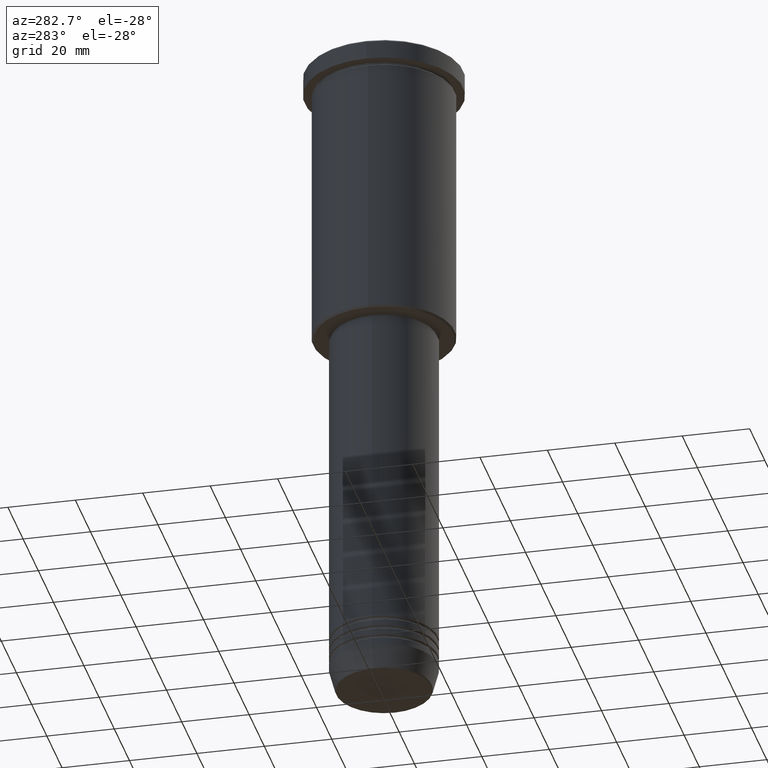
[diagram: clean part render]
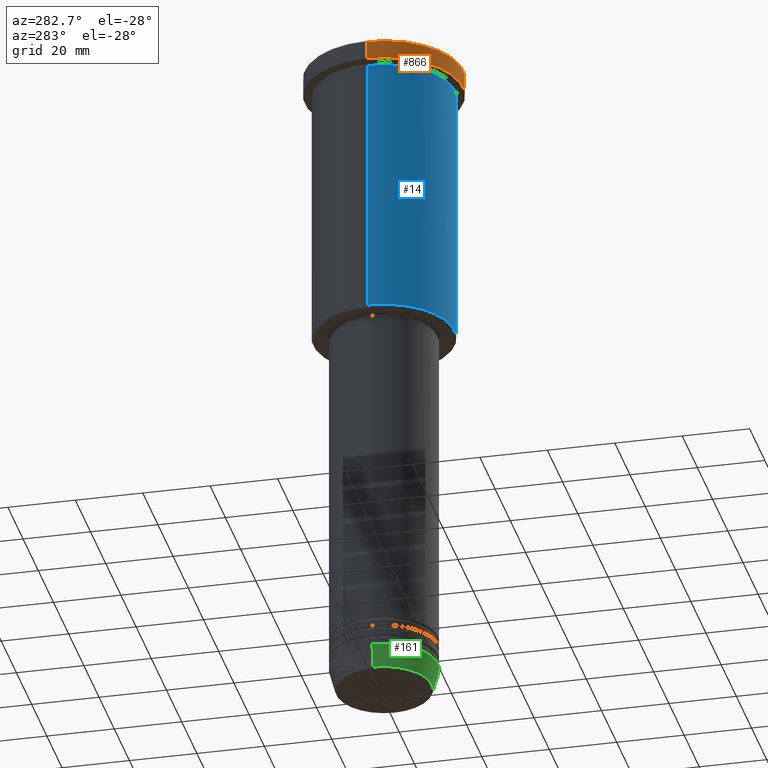
[diagram: same view with three faces highlighted in distinct colors, each labeled with its STEP entity id]
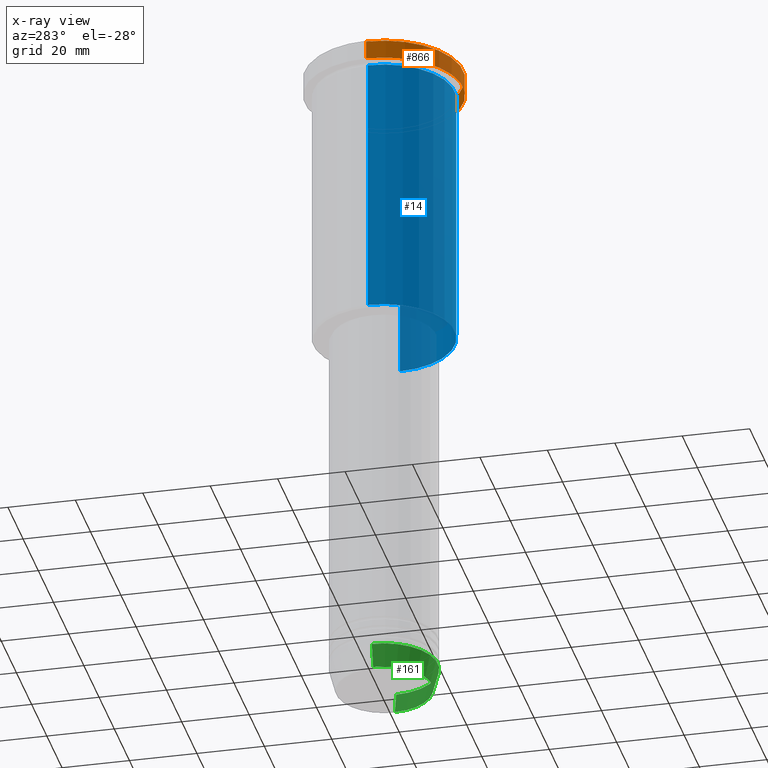
[diagram: x-ray of the same camera — body ghosted, the three highlighted faces saturated]
A machine part, auxiliary view with three faces highlighted in distinct colors.
The next image is the same camera in x-ray (body ghosted, the three faces saturated) — at least one of them is partly hidden behind the body in this view.
Their STEP definitions:

[orange] entity #866 — the highlighted cylindrical surface (partial cylindrical patch) has radius 23.5 mm, axis along (-0, -0, 1).
#24 = AXIS2_PLACEMENT_3D ( 'NONE', #968, #1162, #620 ) ;
#29 = EDGE_CURVE ( 'NONE', #541, #777, #37, .T. ) ;
#35 = CARTESIAN_POINT ( 'NONE',  ( 23.50000000000000000, 0.000000000000000000, -5.999999999999994671 ) ) ;
#37 = LINE ( 'NONE', #486, #363 ) ;
#87 = CARTESIAN_POINT ( 'NONE',  ( 23.50000000000000000, 0.000000000000000000, 0.000000000000000000 ) ) ;
#108 = EDGE_CURVE ( 'NONE', #541, #893, #825, .T. ) ;
#119 = ORIENTED_EDGE ( 'NONE', *, *, #108, .T. ) ;
#128 = CYLINDRICAL_SURFACE ( 'NONE', #1152, 23.50000000000000000 ) ;
#146 = CARTESIAN_POINT ( 'NONE',  ( 23.50000000000000000, 0.000000000000000000, -0.5000000000000004441 ) ) ;
#170 = LINE ( 'NONE', #87, #402 ) ;
#173 = AXIS2_PLACEMENT_3D ( 'NONE', #1177, #350, #659 ) ;
#230 = FACE_OUTER_BOUND ( 'NONE', #704, .T. ) ;
#270 = CARTESIAN_POINT ( 'NONE',  ( -23.50000000000000000, 2.877919977996280320E-15, -0.5000000000000004441 ) ) ;
#288 = EDGE_CURVE ( 'NONE', #893, #603, #170, .T. ) ;
#350 = DIRECTION ( 'NONE',  ( 0.000000000000000000, 0.000000000000000000, -1.000000000000000000 ) ) ;
#363 = VECTOR ( 'NONE', #396, 1000.000000000000000 ) ;
#386 = CARTESIAN_POINT ( 'NONE',  ( -23.50000000000000000, 2.877919977996280320E-15, -5.999999999999994671 ) ) ;
#396 = DIRECTION ( 'NONE',  ( -0.000000000000000000, -0.000000000000000000, 1.000000000000000000 ) ) ;
#400 = EDGE_CURVE ( 'NONE', #603, #777, #564, .T. ) ;
#402 = VECTOR ( 'NONE', #453, 1000.000000000000000 ) ;
#453 = DIRECTION ( 'NONE',  ( -0.000000000000000000, -0.000000000000000000, 1.000000000000000000 ) ) ;
#486 = CARTESIAN_POINT ( 'NONE',  ( -23.50000000000000000, 2.877919977996280320E-15, 0.000000000000000000 ) ) ;
#489 = CARTESIAN_POINT ( 'NONE',  ( 0.000000000000000000, 0.000000000000000000, 0.000000000000000000 ) ) ;
#541 = VERTEX_POINT ( 'NONE', #386 ) ;
#564 = CIRCLE ( 'NONE', #173, 23.50000000000000000 ) ;
#596 = ORIENTED_EDGE ( 'NONE', *, *, #29, .F. ) ;
#603 = VERTEX_POINT ( 'NONE', #146 ) ;
#620 = DIRECTION ( 'NONE',  ( 1.000000000000000000, 0.000000000000000000, 0.000000000000000000 ) ) ;
#659 = DIRECTION ( 'NONE',  ( 1.000000000000000000, 0.000000000000000000, 0.000000000000000000 ) ) ;
#682 = DIRECTION ( 'NONE',  ( -0.000000000000000000, -0.000000000000000000, 1.000000000000000000 ) ) ;
#704 = EDGE_LOOP ( 'NONE', ( #596, #119, #1034, #753 ) ) ;
#753 = ORIENTED_EDGE ( 'NONE', *, *, #400, .T. ) ;
#763 = DIRECTION ( 'NONE',  ( 1.000000000000000000, 0.000000000000000000, 0.000000000000000000 ) ) ;
#777 = VERTEX_POINT ( 'NONE', #270 ) ;
#825 = CIRCLE ( 'NONE', #24, 23.50000000000000000 ) ;
#866 = ADVANCED_FACE ( 'NONE', ( #230 ), #128, .T. ) ;
#893 = VERTEX_POINT ( 'NONE', #35 ) ;
#968 = CARTESIAN_POINT ( 'NONE',  ( 0.000000000000000000, 0.000000000000000000, -5.999999999999994671 ) ) ;
#1034 = ORIENTED_EDGE ( 'NONE', *, *, #288, .T. ) ;
#1152 = AXIS2_PLACEMENT_3D ( 'NONE', #489, #682, #763 ) ;
#1162 = DIRECTION ( 'NONE',  ( -0.000000000000000000, -0.000000000000000000, 1.000000000000000000 ) ) ;
#1177 = CARTESIAN_POINT ( 'NONE',  ( 0.000000000000000000, 0.000000000000000000, -0.5000000000000004441 ) ) ;

[blue] entity #14 — the highlighted cylindrical surface (partial cylindrical patch) has radius 21 mm, axis along (-0, -0, 1).
#5 = ORIENTED_EDGE ( 'NONE', *, *, #1106, .T. ) ;
#14 = ADVANCED_FACE ( 'NONE', ( #477 ), #685, .T. ) ;
#15 = CARTESIAN_POINT ( 'NONE',  ( 0.000000000000000000, 0.000000000000000000, -85.49999999999997158 ) ) ;
#68 = VERTEX_POINT ( 'NONE', #701 ) ;
#73 = LINE ( 'NONE', #889, #655 ) ;
#95 = CARTESIAN_POINT ( 'NONE',  ( 0.000000000000000000, 0.000000000000000000, -6.999999999999994671 ) ) ;
#110 = CARTESIAN_POINT ( 'NONE',  ( -21.00000000000000000, 2.571758278209441661E-15, -6.999999999999994671 ) ) ;
#134 = EDGE_CURVE ( 'NONE', #211, #451, #957, .T. ) ;
#211 = VERTEX_POINT ( 'NONE', #1091 ) ;
#236 = EDGE_CURVE ( 'NONE', #451, #1165, #783, .T. ) ;
#253 = DIRECTION ( 'NONE',  ( -0.000000000000000000, -0.000000000000000000, 1.000000000000000000 ) ) ;
#266 = AXIS2_PLACEMENT_3D ( 'NONE', #95, #359, #273 ) ;
#273 = DIRECTION ( 'NONE',  ( 1.000000000000000000, 0.000000000000000000, 0.000000000000000000 ) ) ;
#297 = DIRECTION ( 'NONE',  ( -0.000000000000000000, -0.000000000000000000, 1.000000000000000000 ) ) ;
#322 = EDGE_CURVE ( 'NONE', #68, #1165, #73, .T. ) ;
#359 = DIRECTION ( 'NONE',  ( -0.000000000000000000, -0.000000000000000000, 1.000000000000000000 ) ) ;
#408 = AXIS2_PLACEMENT_3D ( 'NONE', #15, #823, #907 ) ;
#427 = CARTESIAN_POINT ( 'NONE',  ( -21.00000000000000000, 2.571758278209441661E-15, 0.000000000000000000 ) ) ;
#451 = VERTEX_POINT ( 'NONE', #110 ) ;
#456 = CARTESIAN_POINT ( 'NONE',  ( 21.00000000000000000, 0.000000000000000000, -6.999999999999994671 ) ) ;
#458 = ORIENTED_EDGE ( 'NONE', *, *, #322, .T. ) ;
#477 = FACE_OUTER_BOUND ( 'NONE', #728, .T. ) ;
#516 = ORIENTED_EDGE ( 'NONE', *, *, #134, .F. ) ;
#542 = VECTOR ( 'NONE', #606, 1000.000000000000000 ) ;
#580 = AXIS2_PLACEMENT_3D ( 'NONE', #1117, #297, #1045 ) ;
#606 = DIRECTION ( 'NONE',  ( -0.000000000000000000, -0.000000000000000000, 1.000000000000000000 ) ) ;
#655 = VECTOR ( 'NONE', #253, 1000.000000000000000 ) ;
#685 = CYLINDRICAL_SURFACE ( 'NONE', #580, 21.00000000000000000 ) ;
#687 = ORIENTED_EDGE ( 'NONE', *, *, #236, .F. ) ;
#701 = CARTESIAN_POINT ( 'NONE',  ( 21.00000000000000000, 0.000000000000000000, -85.49999999999997158 ) ) ;
#728 = EDGE_LOOP ( 'NONE', ( #516, #5, #458, #687 ) ) ;
#783 = CIRCLE ( 'NONE', #266, 21.00000000000000000 ) ;
#823 = DIRECTION ( 'NONE',  ( -0.000000000000000000, -0.000000000000000000, 1.000000000000000000 ) ) ;
#889 = CARTESIAN_POINT ( 'NONE',  ( 21.00000000000000000, 0.000000000000000000, 0.000000000000000000 ) ) ;
#907 = DIRECTION ( 'NONE',  ( -1.000000000000000000, 0.000000000000000000, 0.000000000000000000 ) ) ;
#939 = CIRCLE ( 'NONE', #408, 21.00000000000000000 ) ;
#957 = LINE ( 'NONE', #427, #542 ) ;
#1045 = DIRECTION ( 'NONE',  ( 1.000000000000000000, 0.000000000000000000, 0.000000000000000000 ) ) ;
#1091 = CARTESIAN_POINT ( 'NONE',  ( -21.00000000000000000, 2.571758278209441661E-15, -85.49999999999997158 ) ) ;
#1106 = EDGE_CURVE ( 'NONE', #211, #68, #939, .T. ) ;
#1117 = CARTESIAN_POINT ( 'NONE',  ( 0.000000000000000000, 0.000000000000000000, 0.000000000000000000 ) ) ;
#1165 = VERTEX_POINT ( 'NONE', #456 ) ;

[green] entity #161 — the highlighted conical surface has half-angle 15 deg.
#85 = AXIS2_PLACEMENT_3D ( 'NONE', #567, #449, #745 ) ;
#101 = VECTOR ( 'NONE', #573, 1000.000000000000000 ) ;
#123 = ORIENTED_EDGE ( 'NONE', *, *, #1121, .T. ) ;
#127 = LINE ( 'NONE', #314, #544 ) ;
#161 = ADVANCED_FACE ( 'NONE', ( #347 ), #689, .T. ) ;
#265 = DIRECTION ( 'NONE',  ( 1.000000000000000000, 0.000000000000000000, 0.000000000000000000 ) ) ;
#276 = VERTEX_POINT ( 'NONE', #990 ) ;
#294 = CARTESIAN_POINT ( 'NONE',  ( 16.00000000000000000, 0.000000000000000000, -194.0000000000000000 ) ) ;
#295 = EDGE_CURVE ( 'NONE', #651, #403, #505, .T. ) ;
#309 = ORIENTED_EDGE ( 'NONE', *, *, #426, .T. ) ;
#311 = ORIENTED_EDGE ( 'NONE', *, *, #570, .F. ) ;
#314 = CARTESIAN_POINT ( 'NONE',  ( -16.00000000000000000, 1.959434878635765131E-15, -194.0000000000000000 ) ) ;
#324 = DIRECTION ( 'NONE',  ( -0.2588190451025213501, 3.169619151431772337E-17, 0.9659258262890680902 ) ) ;
#347 = FACE_OUTER_BOUND ( 'NONE', #354, .T. ) ;
#354 = EDGE_LOOP ( 'NONE', ( #311, #123, #309, #951 ) ) ;
#403 = VERTEX_POINT ( 'NONE', #747 ) ;
#420 = CARTESIAN_POINT ( 'NONE',  ( -16.00000000000000000, 1.959434878635765131E-15, -194.0000000000000000 ) ) ;
#426 = EDGE_CURVE ( 'NONE', #592, #403, #927, .T. ) ;
#449 = DIRECTION ( 'NONE',  ( -0.000000000000000000, -0.000000000000000000, 1.000000000000000000 ) ) ;
#505 = CIRCLE ( 'NONE', #1168, 16.00000000000000000 ) ;
#544 = VECTOR ( 'NONE', #324, 1000.000000000000000 ) ;
#567 = CARTESIAN_POINT ( 'NONE',  ( 0.000000000000000000, 0.000000000000000000, -200.6294095225512706 ) ) ;
#570 = EDGE_CURVE ( 'NONE', #276, #651, #127, .T. ) ;
#573 = DIRECTION ( 'NONE',  ( 0.2588190451025213501, 0.000000000000000000, 0.9659258262890680902 ) ) ;
#592 = VERTEX_POINT ( 'NONE', #959 ) ;
#651 = VERTEX_POINT ( 'NONE', #420 ) ;
#689 = CONICAL_SURFACE ( 'NONE', #935, 16.00000000000000000, 0.2617993877991500740 ) ;
#745 = DIRECTION ( 'NONE',  ( 1.000000000000000000, 0.000000000000000000, 0.000000000000000000 ) ) ;
#747 = CARTESIAN_POINT ( 'NONE',  ( 16.00000000000000000, 0.000000000000000000, -194.0000000000000000 ) ) ;
#794 = DIRECTION ( 'NONE',  ( 1.000000000000000000, 0.000000000000000000, 0.000000000000000000 ) ) ;
#810 = DIRECTION ( 'NONE',  ( -0.000000000000000000, -0.000000000000000000, 1.000000000000000000 ) ) ;
#886 = DIRECTION ( 'NONE',  ( -0.000000000000000000, -0.000000000000000000, 1.000000000000000000 ) ) ;
#927 = LINE ( 'NONE', #294, #101 ) ;
#935 = AXIS2_PLACEMENT_3D ( 'NONE', #1154, #886, #794 ) ;
#951 = ORIENTED_EDGE ( 'NONE', *, *, #295, .F. ) ;
#959 = CARTESIAN_POINT ( 'NONE',  ( 14.22365507213718239, 0.000000000000000000, -200.6294095225512706 ) ) ;
#990 = CARTESIAN_POINT ( 'NONE',  ( -14.22365507213718239, 1.850665122131322942E-15, -200.6294095225512706 ) ) ;
#1121 = EDGE_CURVE ( 'NONE', #276, #592, #1137, .T. ) ;
#1137 = CIRCLE ( 'NONE', #85, 14.22365507213718239 ) ;
#1154 = CARTESIAN_POINT ( 'NONE',  ( 0.000000000000000000, 0.000000000000000000, -194.0000000000000000 ) ) ;
#1168 = AXIS2_PLACEMENT_3D ( 'NONE', #1183, #810, #265 ) ;
#1183 = CARTESIAN_POINT ( 'NONE',  ( 0.000000000000000000, 0.000000000000000000, -194.0000000000000000 ) ) ;